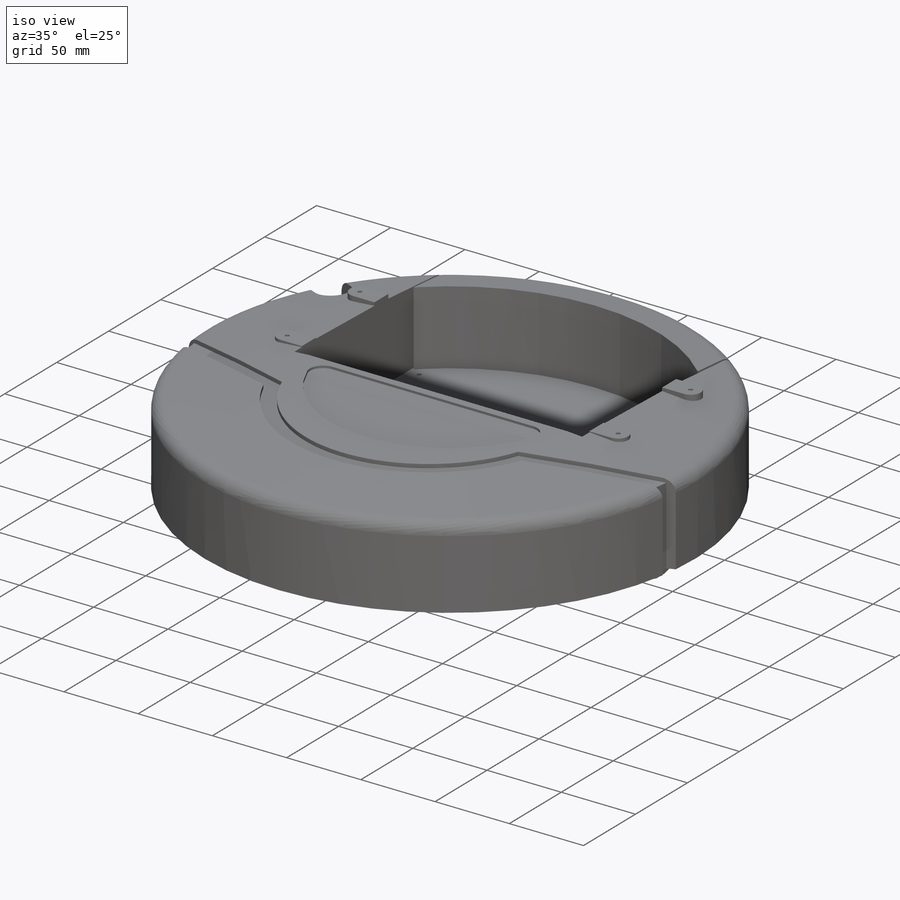
[diagram: iso view]
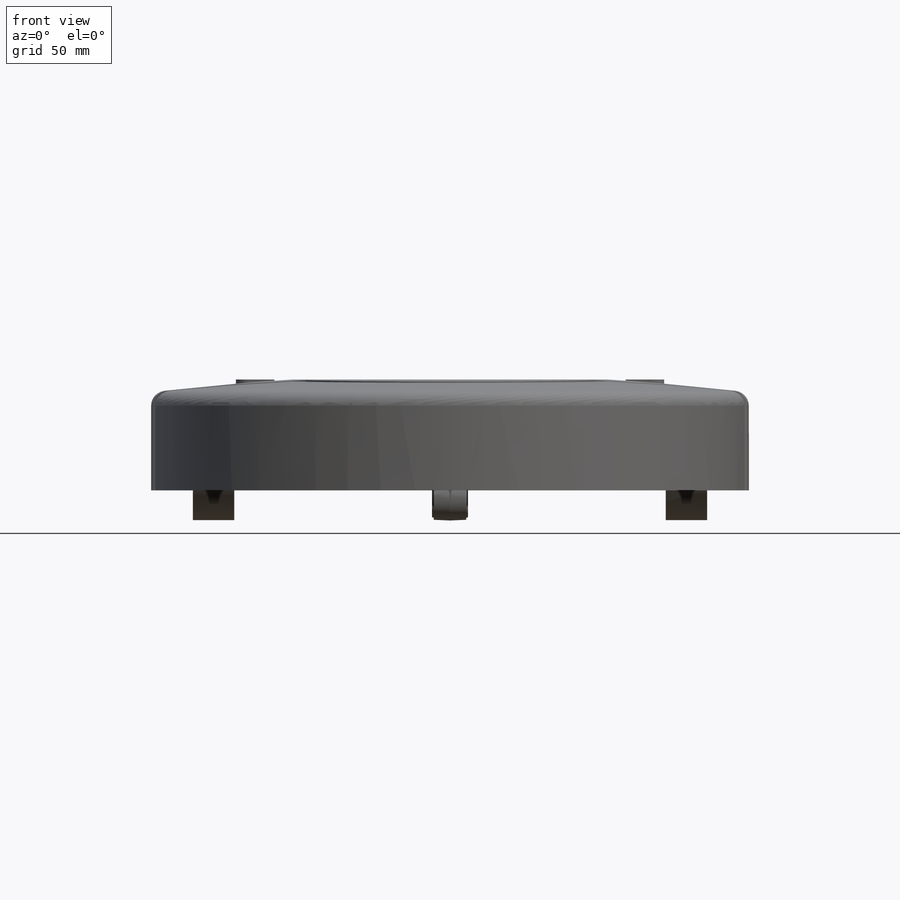
[diagram: front view]
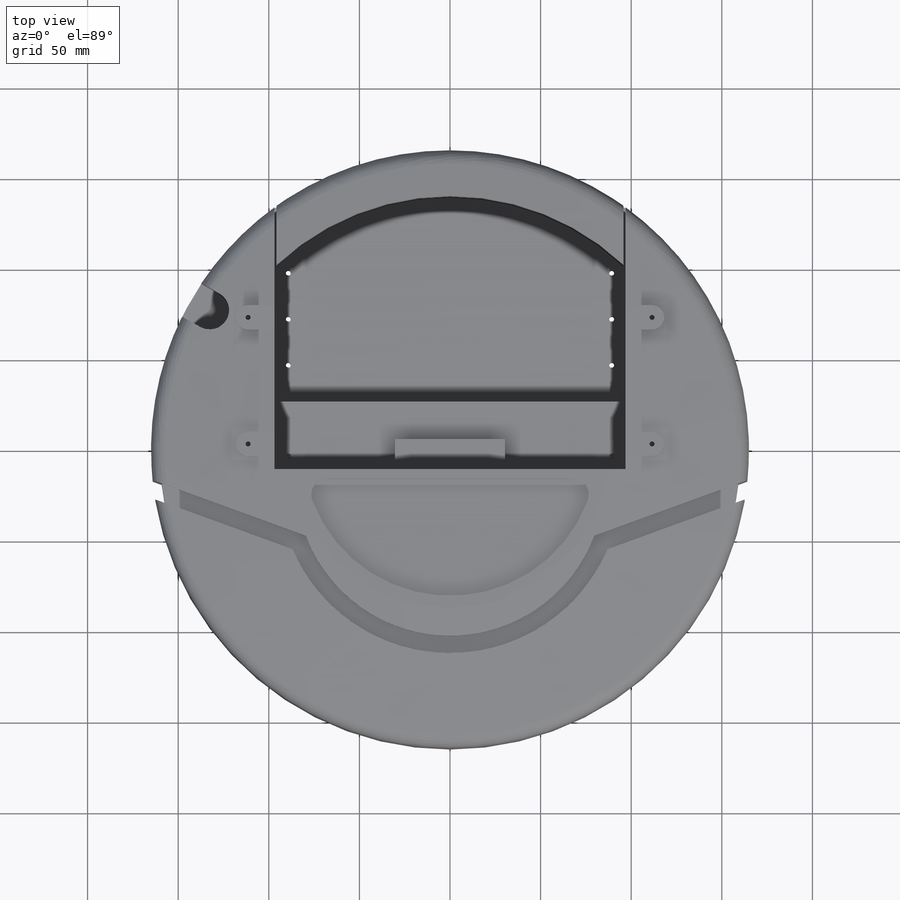
[diagram: top view]
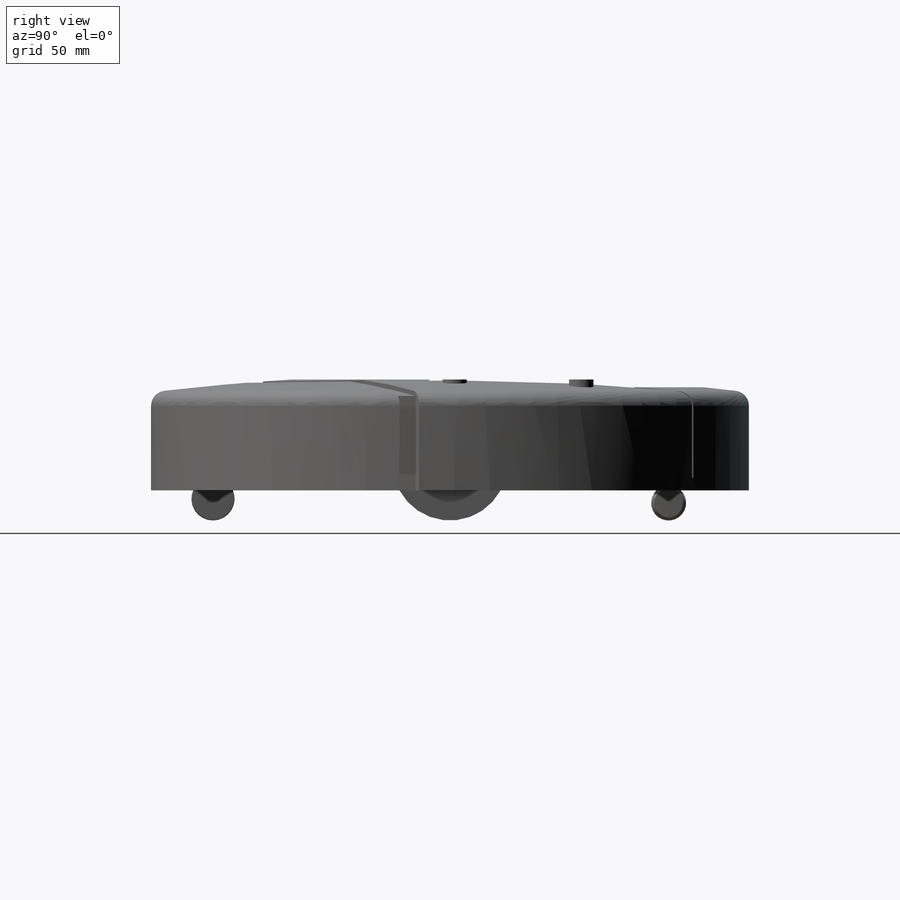
[diagram: right view]
SOLIDWORKS PART (.sldprt)
format: sldprt  version: not decoded by parser v0  size: 727,040 bytes
history: native  units: mm
features: sketch x18, thread x12, cut_extrude x7, extrude x5, plane x3, revolve x3, material x1, dome x1, fillet x1, hole x1, mirror x1 (+11 scaffold rows collapsed)
feature tree (64):
  scaffold x11  (default folders/planes/origin — collapsed)
  material  "Material <not specified>"
  sketch  "Sketch1"  dims[D1=329.95mm]
  extrude  "Extrude1"  Depth=54.102mm
  dome  "Dome1"
  sketch  "Sketch2"  dims[D1=61.1632mm]
  cut_extrude  "Extrude2"  [1 undecoded]
  sketch  "Sketch3"  dims[D1=193.86mm D2=~26.503482mm D3=37.86mm]
  cut_extrude  "Extrude3"  Depth=6.985mm
  sketch  "Sketch4"  dims[D2=37.86mm D1=0.0mm]
  extrude  "Extrude4"  Depth=19.812mm
  sketch  "Sketch5"  dims[D1=60.833mm D2=17.272mm]
  extrude  "Extrude5"  Depth=5.08mm
  fillet  "Fillet1"  Radius=8.255mm
  sketch  "Sketch7"  dims[c1.D1=12.2428mm c1.D2=13.462mm c1.D3=69.85mm c1.D4=15.494mm c2.D1=222.93mm c2.D4=2.596mm]
  extrude  "Extrude6"  [1 undecoded]
  hole  "#6-32 Tapped Hole1"  Diameter=2.7051mm Depth=15.07744mm
  sketch  "3DSketch1"  dims[c1.D1=~20.57765mm c1.D6=7.9756mm c1.D2=~11.672602mm c2.D6=8.6868mm c2.D3=~50.529998mm c3.D6=57.658mm c3.D4=25.4mm c3.D5=25.4mm c3.D2=178.48mm c3.D1=6.35mm]
  sketch  "Sketch9"  dims[hole-wizard template sketch: 47 standard entries collapsed; hole parameters kept: c15.Tap Drill Depth=~15.07744mm c15.D3=~14.816244mm c15.Drill Angle=118.0deg]
  thread  "Hole Thread1"  Diameter=12.7mm  [1 undecoded]
  thread  "Hole Thread2"  Diameter=12.7mm  [1 undecoded]
  thread  "Hole Thread3"  Diameter=12.7mm  [1 undecoded]
  thread  "Hole Thread4"  Diameter=12.7mm  [1 undecoded]
  thread  "Hole Thread5"  Diameter=6.985mm  [1 undecoded]
  thread  "Hole Thread6"  Diameter=6.985mm  [1 undecoded]
  thread  "Hole Thread7"  Diameter=6.985mm  [1 undecoded]
  thread  "Hole Thread8"  Diameter=12.7mm  [1 undecoded]
  thread  "Hole Thread9"  Diameter=6.985mm  [1 undecoded]
  thread  "Hole Thread10"  Diameter=6.985mm  [1 undecoded]
  thread  "Hole Thread11"  Diameter=6.985mm  [1 undecoded]
  thread  "Hole Thread12"  Diameter=12.7mm  [1 undecoded]
  sketch  "Sketch10"  dims[c1.D2=~81.272193mm c1.D3=8.89mm c1.D1=5.207mm c2.D2=6.604mm c2.D1=6.604mm]
  cut_extrude  "Extrude7"  Depth=1.524mm
  plane  "Plane1"  Offset=119.0625mm
  sketch  "Sketch11"  dims[c1.D2=31.75mm c1.D3=31.75mm c1.D1=45.72mm c2.D3=16.637mm]
  extrude  "Extrude8"  Depth=22.86mm
  mirror  "Mirror1"
  sketch  "Sketch13"  dims[D1=25.4mm]
  revolve  "Revolve1"  Angle=360deg
  sketch  "Sketch14"  dims[D1=1.27mm D2=50.8mm]
  cut_extrude  "Extrude9"  [1 undecoded]
  sketch  "Sketch15"  dims[D2=19.304mm D4=23.876mm D1=120.65mm D3=130.81mm]
  plane  "Plane2"
  sketch  "Sketch16"  dims[D1=19.812mm D2=7.9375mm]
  revolve  "Revolve2"  Angle=360deg
  plane  "Plane3"
  sketch  "Sketch17"  dims[D1=11.557mm D2=17.907mm]
  revolve  "Revolve3"  Angle=360deg
  sketch  "Sketch18"  dims[D2=21.336mm D1=~4.136357mm D3=~21.170642mm]
  cut_extrude  "Extrude10"  Depth=32.766mm
  sketch  "Sketch19"  dims[c1.D2=~169.957005mm c1.D1=~18.228358mm c1.D3=~17.13228mm c1.D4=~80.446689mm c2.D4=20.1deg c2.D5=9.525mm]
  cut_extrude  "Extrude11"  Depth=2.54mm
  sketch  "Sketch20"  dims[D1=0.0mm D2=4.7625mm]
  cut_extrude  "Extrude12"  [1 undecoded]
decode coverage: 43 of 49 modeling features carry decoded parameters
note: ~ marks probable driven/reference dimensions
note: 16 parameter values undecoded
summary: no parameter record found for 4 features
note: suppression state not decoded; provenance and decode notes live in map.json
